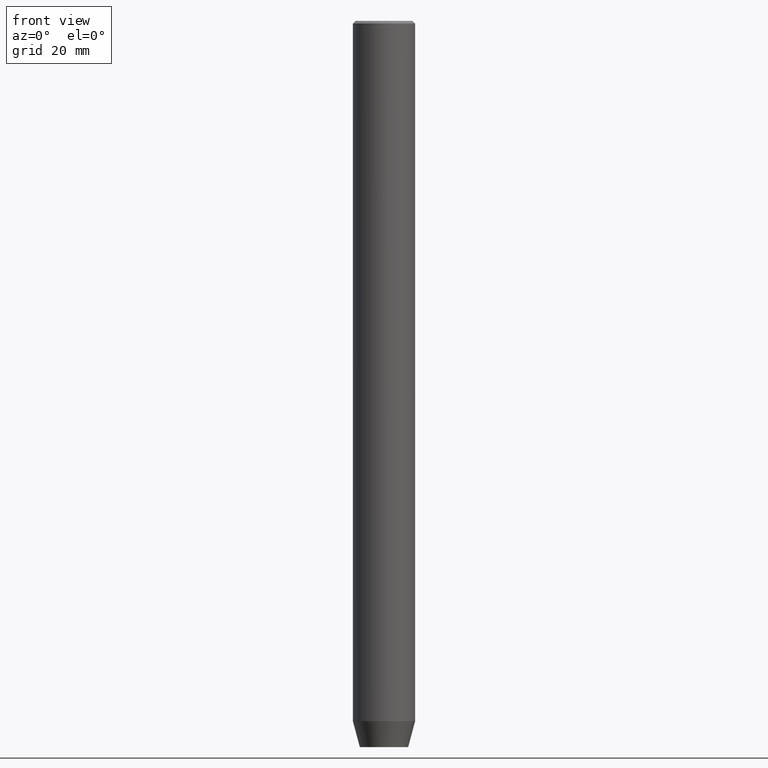
[diagram: clean part render]
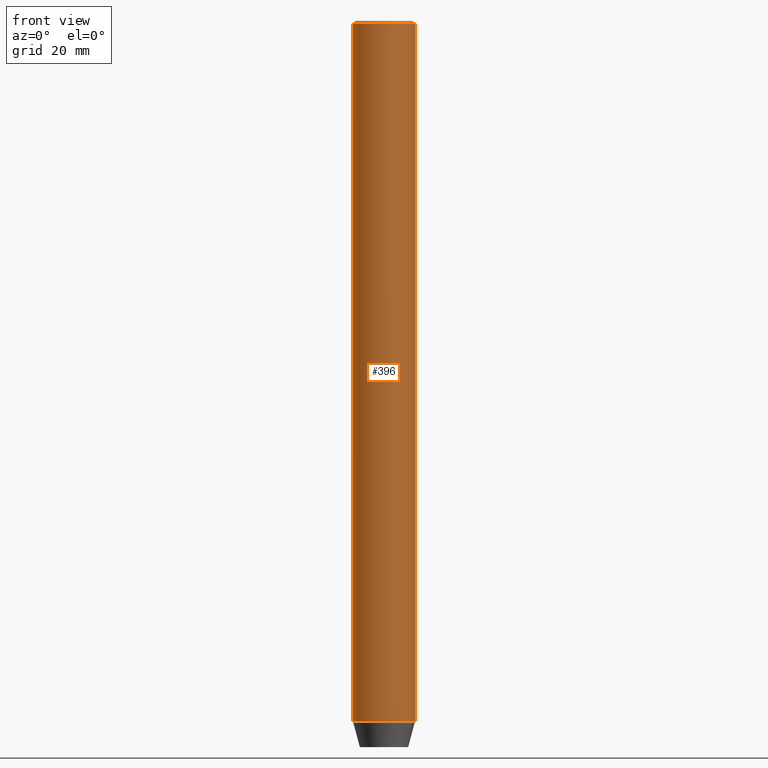
[diagram: same view with one face highlighted and labeled with its STEP entity id]
A machine part, front view. The second image highlights one B-rep face of the part: STEP entity #396.
In plain terms, the highlighted cylindrical surface (edge-blend (fillet) strip) has radius 6 mm, axis along (-0, -0, 1).
Its self-contained STEP definition (entity closure, byte-faithful):
#4 = VERTEX_POINT ( 'NONE', #152 ) ;
#41 = DIRECTION ( 'NONE',  ( 1.000000000000000000, 0.000000000000000000, 0.000000000000000000 ) ) ;
#63 = CARTESIAN_POINT ( 'NONE',  ( 0.000000000000000000, 0.000000000000000000, -0.4999999999999614197 ) ) ;
#68 = CARTESIAN_POINT ( 'NONE',  ( 0.000000000000000000, 0.000000000000000000, 0.000000000000000000 ) ) ;
#77 = VERTEX_POINT ( 'NONE', #506 ) ;
#81 = VECTOR ( 'NONE', #218, 1000.000000000000000 ) ;
#87 = LINE ( 'NONE', #356, #265 ) ;
#102 = AXIS2_PLACEMENT_3D ( 'NONE', #68, #388, #431 ) ;
#105 = DIRECTION ( 'NONE',  ( 1.000000000000000000, 0.000000000000000000, 0.000000000000000000 ) ) ;
#124 = VERTEX_POINT ( 'NONE', #154 ) ;
#152 = CARTESIAN_POINT ( 'NONE',  ( 6.000000000000000000, 0.000000000000000000, -135.0000000000000000 ) ) ;
#154 = CARTESIAN_POINT ( 'NONE',  ( 6.000000000000000000, 0.000000000000000000, -0.4999999999999614197 ) ) ;
#162 = FACE_OUTER_BOUND ( 'NONE', #263, .T. ) ;
#165 = DIRECTION ( 'NONE',  ( -0.000000000000000000, -0.000000000000000000, 1.000000000000000000 ) ) ;
#167 = CARTESIAN_POINT ( 'NONE',  ( 0.000000000000000000, 0.000000000000000000, -135.0000000000000000 ) ) ;
#177 = LINE ( 'NONE', #271, #81 ) ;
#218 = DIRECTION ( 'NONE',  ( -0.000000000000000000, -0.000000000000000000, 1.000000000000000000 ) ) ;
#241 = ORIENTED_EDGE ( 'NONE', *, *, #480, .T. ) ;
#249 = CYLINDRICAL_SURFACE ( 'NONE', #102, 6.000000000000000000 ) ;
#263 = EDGE_LOOP ( 'NONE', ( #421, #241, #488, #458 ) ) ;
#265 = VECTOR ( 'NONE', #438, 1000.000000000000000 ) ;
#271 = CARTESIAN_POINT ( 'NONE',  ( 6.000000000000000000, 0.000000000000000000, 0.000000000000000000 ) ) ;
#322 = AXIS2_PLACEMENT_3D ( 'NONE', #167, #165, #41 ) ;
#356 = CARTESIAN_POINT ( 'NONE',  ( -6.000000000000000000, 7.347880794884119736E-16, 0.000000000000000000 ) ) ;
#366 = AXIS2_PLACEMENT_3D ( 'NONE', #63, #391, #105 ) ;
#372 = CARTESIAN_POINT ( 'NONE',  ( -6.000000000000000000, 7.347880794884119736E-16, -0.4999999999999614197 ) ) ;
#380 = EDGE_CURVE ( 'NONE', #124, #571, #452, .T. ) ;
#388 = DIRECTION ( 'NONE',  ( -0.000000000000000000, -0.000000000000000000, 1.000000000000000000 ) ) ;
#391 = DIRECTION ( 'NONE',  ( 0.000000000000000000, 0.000000000000000000, -1.000000000000000000 ) ) ;
#396 = ADVANCED_FACE ( 'NONE', ( #162 ), #249, .T. ) ;
#419 = EDGE_CURVE ( 'NONE', #77, #571, #87, .T. ) ;
#421 = ORIENTED_EDGE ( 'NONE', *, *, #419, .F. ) ;
#430 = EDGE_CURVE ( 'NONE', #4, #124, #177, .T. ) ;
#431 = DIRECTION ( 'NONE',  ( 1.000000000000000000, 0.000000000000000000, 0.000000000000000000 ) ) ;
#438 = DIRECTION ( 'NONE',  ( -0.000000000000000000, -0.000000000000000000, 1.000000000000000000 ) ) ;
#452 = CIRCLE ( 'NONE', #366, 6.000000000000000000 ) ;
#458 = ORIENTED_EDGE ( 'NONE', *, *, #380, .T. ) ;
#480 = EDGE_CURVE ( 'NONE', #77, #4, #499, .T. ) ;
#488 = ORIENTED_EDGE ( 'NONE', *, *, #430, .T. ) ;
#499 = CIRCLE ( 'NONE', #322, 6.000000000000000000 ) ;
#506 = CARTESIAN_POINT ( 'NONE',  ( -6.000000000000000000, 7.347880794884119736E-16, -135.0000000000000000 ) ) ;
#571 = VERTEX_POINT ( 'NONE', #372 ) ;